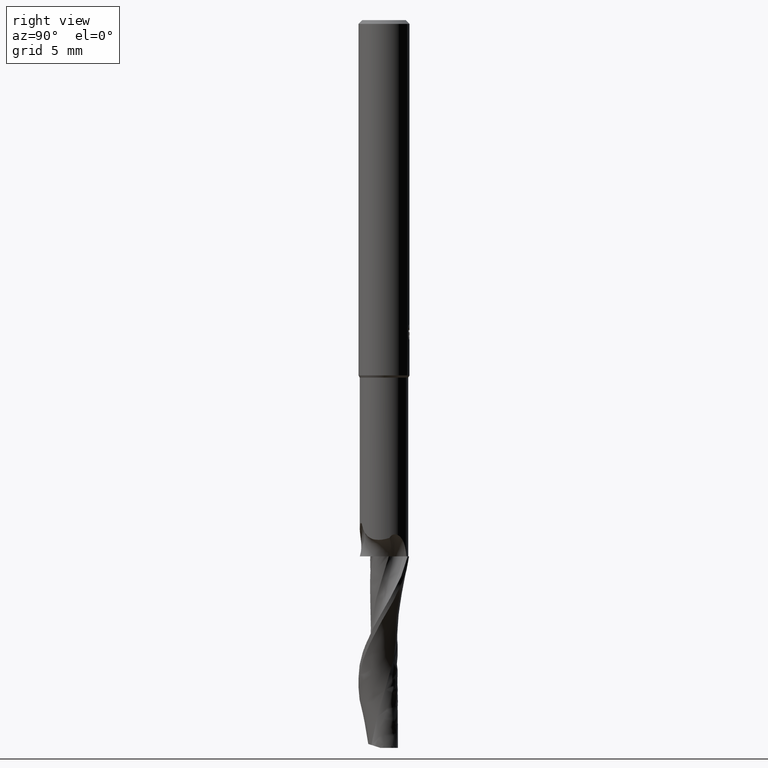
[diagram: clean part render]
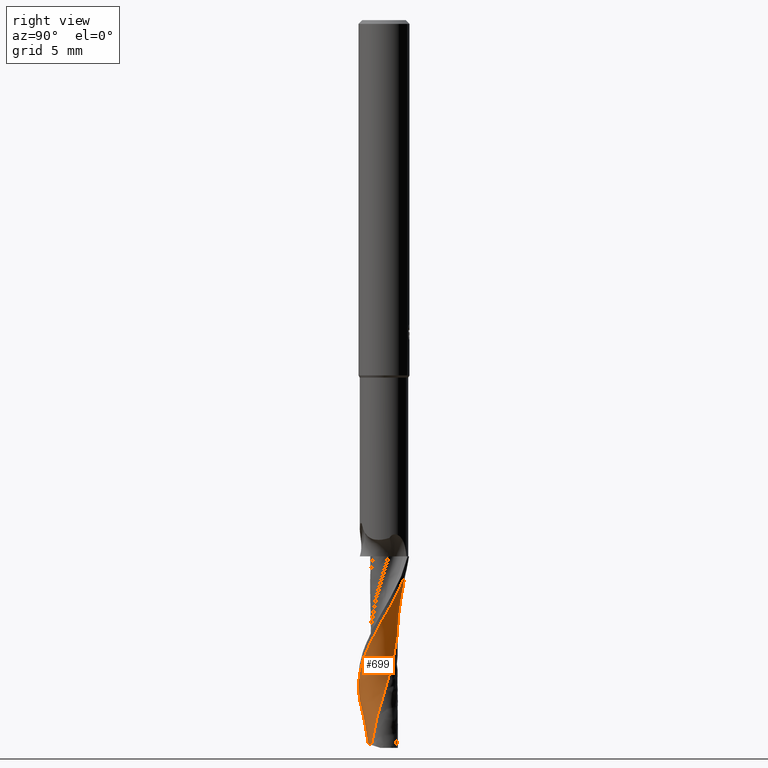
[diagram: same view with one face highlighted and labeled with its STEP entity id]
A machine part, right view. The second image highlights one B-rep face of the part: STEP entity #699.
In plain terms, the highlighted face is a freeform B-spline surface patch.
Its self-contained STEP definition (entity closure, byte-faithful):
#277=VERTEX_POINT('',#773);
#283=VERTEX_POINT('',#780);
#445=VERTEX_POINT('',#962);
#489=VERTEX_POINT('',#1007);
#589=EDGE_CURVE('',#283,#489,#1117,.T.);
#635=EDGE_CURVE('',#277,#283,#1166,.T.);
#649=EDGE_CURVE('',#489,#445,#1182,.T.);
#661=EDGE_CURVE('',#703,#445,#1197,.T.);
#671=EDGE_CURVE('',#703,#277,#1207,.T.);
#699=ADVANCED_FACE('',(#1235),#1236,.T.);
#703=VERTEX_POINT('',#1240);
#773=CARTESIAN_POINT('',(-1.95860379196093,-0.404808643365862,-56.9569360261492));
#780=CARTESIAN_POINT('',(2.08923074643851E-014,-1.99996813083805,-52.2196257072974));
#962=CARTESIAN_POINT('',(-1.06526862432302,0.0507138447766669,-42.0));
#1007=CARTESIAN_POINT('',(0.390368120532915,1.96143129894259,-42.0));
#1117=B_SPLINE_CURVE_WITH_KNOTS('',3,(#3291,#3292,#3293,#3294,#3295,#3296,#3297,#3298,#3299,#3300,#3301,#3302,#3303,#3304,#3305,#3306,#3307,#3308,#3309,#3310,#3311,#3312,#3313,#3314,#3315,#3316,#3317,#3318,#3319,#3320,#3321,#3322),.UNSPECIFIED.,.F.,.F.,(4,2,2,2,2,2,2,2,2,2,2,2,2,2,2,4),(0.0,1.17793156667396,2.40662367329956,3.50711822565191,7.77868306550345,8.74969548657624,10.5338851353546,11.9517486663174,12.9337812334165,13.9245081158108,15.5770174045067,16.2344615062287,17.4623358272344,18.060175245501,18.7527611448673,19.8394119704226),.UNSPECIFIED.);
#1166=B_SPLINE_CURVE_WITH_KNOTS('',3,(#3487,#3488,#3489,#3490,#3491,#3492,#3493,#3494,#3495,#3496,#3497,#3498,#3499,#3500,#3501,#3502,#3503,#3504,#3505,#3506,#3507,#3508,#3509,#3510,#3511,#3512,#3513,#3514,#3515,#3516,#3517,#3518),.UNSPECIFIED.,.F.,.F.,(4,2,2,2,2,2,2,2,2,2,2,2,2,2,2,4),(0.0,1.17793156667396,2.40662367329956,3.50711822565191,7.77868306550345,8.74969548657624,10.5338851353546,11.9517486663174,12.9337812334165,13.9245081158108,15.5770174045067,16.2344615062287,17.4623358272344,18.060175245501,18.7527611448673,19.8394119704226),.UNSPECIFIED.);
#1182=B_SPLINE_CURVE_WITH_KNOTS('',3,(#3540,#3541,#3542,#3543,#3544,#3545,#3546,#3547,#3548,#3549,#3550,#3551),.UNSPECIFIED.,.F.,.F.,(4,2,2,2,2,4),(0.0,0.694719835236679,1.38943233221595,2.08414310306714,2.47642715895697,2.86870989899778),.UNSPECIFIED.);
#1197=B_SPLINE_CURVE_WITH_KNOTS('',3,(#3583,#3584,#3585,#3586,#3587,#3588,#3589,#3590,#3591,#3592,#3593,#3594,#3595,#3596,#3597,#3598,#3599,#3600,#3601,#3602,#3603,#3604,#3605,#3606,#3607,#3608,#3609,#3610,#3611,#3612,#3613,#3614,#3615,#3616,#3617,#3618,#3619,#3620,#3621),.UNSPECIFIED.,.F.,.F.,(4,1,2,1,2,1,1,1,2,1,1,2,1,1,2,1,1,1,2,1,1,2,1,1,2,1,1,1,4),(0.0,0.719943288048691,1.43988657609738,2.15982986414607,2.87977315219476,3.59971644024345,4.31965972829214,5.03960301634083,5.75954630438952,6.47948959243822,7.55940452451125,8.63931945658429,9.71923438865732,10.7991493207304,11.519092608779,12.2390358968277,12.9589791848764,13.6789224729251,14.3988657609738,15.1188090490225,16.1987239810955,17.2786389131686,18.3585538452416,19.4384687773146,20.1584120653633,20.878355353412,21.5982986414607,22.3182419295094,23.0381852175581),.UNSPECIFIED.);
#1207=B_SPLINE_CURVE_WITH_KNOTS('',3,(#3642,#3643,#3644,#3645,#3646,#3647,#3648,#3649,#3650,#3651,#3652,#3653),.UNSPECIFIED.,.F.,.F.,(4,2,2,2,2,4),(0.0,0.698660160535304,1.3420299014617,1.98621786227805,2.45356189847831,2.94806132221157),.UNSPECIFIED.);
#1235=FACE_OUTER_BOUND('',#3716,.T.);
#1236=B_SPLINE_SURFACE_WITH_KNOTS('',3,3,((#3717,#3718,#3719,#3720,#3721,#3722,#3723,#3724,#3725,#3726,#3727,#3728,#3729,#3730,#3731,#3732,#3733,#3734,#3735,#3736,#3737,#3738,#3739,#3740,#3741,#3742,#3743,#3744,#3745,#3746,#3747,#3748,#3749,#3750,#3751,#3752,#3753,#3754,#3755),(#3756,#3757,#3758,#3759,#3760,#3761,#3762,#3763,#3764,#3765,#3766,#3767,#3768,#3769,#3770,#3771,#3772,#3773,#3774,#3775,#3776,#3777,#3778,#3779,#3780,#3781,#3782,#3783,#3784,#3785,#3786,#3787,#3788,#3789,#3790,#3791,#3792,#3793,#3794),(#3795,#3796,#3797,#3798,#3799,#3800,#3801,#3802,#3803,#3804,#3805,#3806,#3807,#3808,#3809,#3810,#3811,#3812,#3813,#3814,#3815,#3816,#3817,#3818,#3819,#3820,#3821,#3822,#3823,#3824,#3825,#3826,#3827,#3828,#3829,#3830,#3831,#3832,#3833),(#3834,#3835,#3836,#3837,#3838,#3839,#3840,#3841,#3842,#3843,#3844,#3845,#3846,#3847,#3848,#3849,#3850,#3851,#3852,#3853,#3854,#3855,#3856,#3857,#3858,#3859,#3860,#3861,#3862,#3863,#3864,#3865,#3866,#3867,#3868,#3869,#3870,#3871,#3872),(#3873,#3874,#3875,#3876,#3877,#3878,#3879,#3880,#3881,#3882,#3883,#3884,#3885,#3886,#3887,#3888,#3889,#3890,#3891,#3892,#3893,#3894,#3895,#3896,#3897,#3898,#3899,#3900,#3901,#3902,#3903,#3904,#3905,#3906,#3907,#3908,#3909,#3910,#3911),(#3912,#3913,#3914,#3915,#3916,#3917,#3918,#3919,#3920,#3921,#3922,#3923,#3924,#3925,#3926,#3927,#3928,#3929,#3930,#3931,#3932,#3933,#3934,#3935,#3936,#3937,#3938,#3939,#3940,#3941,#3942,#3943,#3944,#3945,#3946,#3947,#3948,#3949,#3950),(#3951,#3952,#3953,#3954,#3955,#3956,#3957,#3958,#3959,#3960,#3961,#3962,#3963,#3964,#3965,#3966,#3967,#3968,#3969,#3970,#3971,#3972,#3973,#3974,#3975,#3976,#3977,#3978,#3979,#3980,#3981,#3982,#3983,#3984,#3985,#3986,#3987,#3988,#3989)),.UNSPECIFIED.,.F.,.F.,.F.,(4,1,1,1,4),(4,1,2,1,2,1,1,1,2,1,1,2,1,1,2,1,1,1,2,1,1,2,1,1,2,1,1,1,4),(-1.60894697096009,-1.20671022822007,-0.804473485480046,-0.402236742740023,7.02071471736636E-016),(0.0,0.719943288048691,1.43988657609738,2.15982986414607,2.87977315219476,3.59971644024345,4.31965972829214,5.03960301634083,5.75954630438952,6.47948959243822,7.55940452451125,8.63931945658429,9.71923438865732,10.7991493207304,11.519092608779,12.2390358968277,12.9589791848764,13.6789224729251,14.3988657609738,15.1188090490225,16.1987239810955,17.2786389131686,18.3585538452416,19.4384687773146,20.1584120653633,20.878355353412,21.5982986414607,22.3182419295094,23.0381852175581),.UNSPECIFIED.);
#1240=CARTESIAN_POINT('',(0.419232439623331,-0.981047397900082,-56.7697047050683));
#3291=CARTESIAN_POINT('',(-1.96328303999171,-0.381470450862078,-57.0));
#3292=CARTESIAN_POINT('',(-1.92704270231658,-0.567973648174512,-56.6563833638706));
#3293=CARTESIAN_POINT('',(-1.86382897871028,-0.751309479628432,-56.3064245858749));
#3294=CARTESIAN_POINT('',(-1.67880934341517,-1.10602025664699,-55.6090934745505));
#3295=CARTESIAN_POINT('',(-1.57775220575786,-1.23331592117705,-55.3483549698159));
#3296=CARTESIAN_POINT('',(-1.45099880331821,-1.37945803321539,-55.0336554974317));
#3297=CARTESIAN_POINT('',(-1.38766095403773,-1.44294171666506,-54.883840767047));
#3298=CARTESIAN_POINT('',(-1.06532500919681,-1.72673673947409,-54.1480850051789));
#3299=CARTESIAN_POINT('',(-0.757798874445388,-1.88152425893738,-53.5206414285562));
#3300=CARTESIAN_POINT('',(-0.352112138311507,-1.97023376848447,-52.8034074049177));
#3301=CARTESIAN_POINT('',(-0.274884423094191,-1.98258538108556,-52.6711251925274));
#3302=CARTESIAN_POINT('',(-0.0503645331181015,-2.00466493244749,-52.2984670393891));
#3303=CARTESIAN_POINT('',(0.158945632580277,-2.00983626532763,-51.9659413446081));
#3304=CARTESIAN_POINT('',(0.606315177520394,-1.91655258412328,-51.1618650963478));
#3305=CARTESIAN_POINT('',(0.796233397213528,-1.84559016623285,-50.7961059346553));
#3306=CARTESIAN_POINT('',(1.09341653154166,-1.68036251733889,-50.1929990425679));
#3307=CARTESIAN_POINT('',(1.21065149044177,-1.59860688600114,-49.9460708623673));
#3308=CARTESIAN_POINT('',(1.43139706767604,-1.40452525302381,-49.4578106596688));
#3309=CARTESIAN_POINT('',(1.554980130864,-1.27549784538948,-49.1746012343892));
#3310=CARTESIAN_POINT('',(1.86594602543662,-0.802117448787922,-48.1877307367515));
#3311=CARTESIAN_POINT('',(1.98175863474316,-0.454814030327322,-47.5238775024649));
#3312=CARTESIAN_POINT('',(2.00442697924102,0.057287742900902,-46.6643489848101));
#3313=CARTESIAN_POINT('',(1.99563262414973,0.19787568995156,-46.4423919515521));
#3314=CARTESIAN_POINT('',(1.92250225825758,0.616744241188146,-45.719355096347));
#3315=CARTESIAN_POINT('',(1.8197260545477,0.87117047020599,-45.2256986570917));
#3316=CARTESIAN_POINT('',(1.60358017339008,1.20205967451739,-44.5224987250621));
#3317=CARTESIAN_POINT('',(1.52094217865489,1.30563370895892,-44.2919088378178));
#3318=CARTESIAN_POINT('',(1.31632815741288,1.51375888299308,-43.8013209583195));
#3319=CARTESIAN_POINT('',(1.19880013567537,1.60864100818994,-43.5642779431659));
#3320=CARTESIAN_POINT('',(0.85350025042655,1.82570797790167,-42.8691235468342));
#3321=CARTESIAN_POINT('',(0.624229807722033,1.91489056455931,-42.4270861703793));
#3322=CARTESIAN_POINT('',(0.390368120532913,1.96143129894259,-42.0));
#3487=CARTESIAN_POINT('',(-1.96328303999171,-0.381470450862078,-57.0));
#3488=CARTESIAN_POINT('',(-1.92704270231658,-0.567973648174512,-56.6563833638706));
#3489=CARTESIAN_POINT('',(-1.86382897871028,-0.751309479628432,-56.3064245858749));
#3490=CARTESIAN_POINT('',(-1.67880934341517,-1.10602025664699,-55.6090934745505));
#3491=CARTESIAN_POINT('',(-1.57775220575786,-1.23331592117705,-55.3483549698159));
#3492=CARTESIAN_POINT('',(-1.45099880331821,-1.37945803321539,-55.0336554974317));
#3493=CARTESIAN_POINT('',(-1.38766095403773,-1.44294171666506,-54.883840767047));
#3494=CARTESIAN_POINT('',(-1.06532500919681,-1.72673673947409,-54.1480850051789));
#3495=CARTESIAN_POINT('',(-0.757798874445388,-1.88152425893738,-53.5206414285562));
#3496=CARTESIAN_POINT('',(-0.352112138311507,-1.97023376848447,-52.8034074049177));
#3497=CARTESIAN_POINT('',(-0.274884423094191,-1.98258538108556,-52.6711251925274));
#3498=CARTESIAN_POINT('',(-0.0503645331181015,-2.00466493244749,-52.2984670393891));
#3499=CARTESIAN_POINT('',(0.158945632580277,-2.00983626532763,-51.9659413446081));
#3500=CARTESIAN_POINT('',(0.606315177520394,-1.91655258412328,-51.1618650963478));
#3501=CARTESIAN_POINT('',(0.796233397213528,-1.84559016623285,-50.7961059346553));
#3502=CARTESIAN_POINT('',(1.09341653154166,-1.68036251733889,-50.1929990425679));
#3503=CARTESIAN_POINT('',(1.21065149044177,-1.59860688600114,-49.9460708623673));
#3504=CARTESIAN_POINT('',(1.43139706767604,-1.40452525302381,-49.4578106596688));
#3505=CARTESIAN_POINT('',(1.554980130864,-1.27549784538948,-49.1746012343892));
#3506=CARTESIAN_POINT('',(1.86594602543662,-0.802117448787922,-48.1877307367515));
#3507=CARTESIAN_POINT('',(1.98175863474316,-0.454814030327322,-47.5238775024649));
#3508=CARTESIAN_POINT('',(2.00442697924102,0.057287742900902,-46.6643489848101));
#3509=CARTESIAN_POINT('',(1.99563262414973,0.19787568995156,-46.4423919515521));
#3510=CARTESIAN_POINT('',(1.92250225825758,0.616744241188146,-45.719355096347));
#3511=CARTESIAN_POINT('',(1.8197260545477,0.87117047020599,-45.2256986570917));
#3512=CARTESIAN_POINT('',(1.60358017339008,1.20205967451739,-44.5224987250621));
#3513=CARTESIAN_POINT('',(1.52094217865489,1.30563370895892,-44.2919088378178));
#3514=CARTESIAN_POINT('',(1.31632815741288,1.51375888299308,-43.8013209583195));
#3515=CARTESIAN_POINT('',(1.19880013567537,1.60864100818994,-43.5642779431659));
#3516=CARTESIAN_POINT('',(0.85350025042655,1.82570797790167,-42.8691235468342));
#3517=CARTESIAN_POINT('',(0.624229807722033,1.91489056455931,-42.4270861703793));
#3518=CARTESIAN_POINT('',(0.390368120532913,1.96143129894259,-42.0));
#3540=CARTESIAN_POINT('',(0.613033298537831,1.98721478336767,-42.0));
#3541=CARTESIAN_POINT('',(0.38177567388653,1.97512783523241,-42.0));
#3542=CARTESIAN_POINT('',(0.155089901132811,1.91798687460441,-42.0));
#3543=CARTESIAN_POINT('',(-0.263616849927804,1.72002965150163,-42.0));
#3544=CARTESIAN_POINT('',(-0.451634956390322,1.58110692444645,-42.0));
#3545=CARTESIAN_POINT('',(-0.76383687906519,1.23901110749601,-42.0));
#3546=CARTESIAN_POINT('',(-0.88503587592455,1.03910897569203,-42.0));
#3547=CARTESIAN_POINT('',(-1.00938936020507,0.698785043858428,-42.0));
#3548=CARTESIAN_POINT('',(-1.04058457334002,0.571390153386056,-42.0));
#3549=CARTESIAN_POINT('',(-1.07447766500026,0.312073468052592,-42.0));
#3550=CARTESIAN_POINT('',(-1.07707248963659,0.18094089157019,-42.0));
#3551=CARTESIAN_POINT('',(-1.06526862432302,0.0507138447766599,-42.0));
#3583=CARTESIAN_POINT('',(-0.7454103627123,-0.778736371108074,-61.0));
#3584=CARTESIAN_POINT('',(-0.71085816802661,-0.803201734372931,-60.7603137171853));
#3585=CARTESIAN_POINT('',(-0.628700295074678,-0.863262752723454,-60.2814547144464));
#3586=CARTESIAN_POINT('',(-0.505331455079665,-0.938212019353723,-59.8026766142414));
#3587=CARTESIAN_POINT('',(-0.355674214222451,-1.0083809094642,-59.3231970892319));
#3588=CARTESIAN_POINT('',(-0.204971542050152,-1.05637683094339,-58.8436634261087));
#3589=CARTESIAN_POINT('',(-0.0549148999241464,-1.06948069746193,-58.3644418018063));
#3590=CARTESIAN_POINT('',(0.0964052008001218,-1.06711319266951,-57.8854105928121));
#3591=CARTESIAN_POINT('',(0.242446835293972,-1.04796660358779,-57.4062613204771));
#3592=CARTESIAN_POINT('',(0.444067406430681,-0.977494979163422,-56.6875933215937));
#3593=CARTESIAN_POINT('',(0.630141428757512,-0.868368663076686,-55.9690798867515));
#3594=CARTESIAN_POINT('',(0.743621512764961,-0.768064141781557,-55.4900300276519));
#3595=CARTESIAN_POINT('',(0.8492753356405,-0.652386314567438,-55.0107816727479));
#3596=CARTESIAN_POINT('',(0.958689402422757,-0.498441780257405,-54.411547930503));
#3597=CARTESIAN_POINT('',(1.05698802071046,-0.230578150210571,-53.4530320832033));
#3598=CARTESIAN_POINT('',(1.07215820322127,-0.00881181114975998,-52.7345939707004));
#3599=CARTESIAN_POINT('',(1.05100280223269,0.224881050635019,-52.0158732580651));
#3600=CARTESIAN_POINT('',(0.99082959013382,0.440065880882917,-51.2968409758389));
#3601=CARTESIAN_POINT('',(0.835572995281969,0.680260420725513,-50.3386206750373));
#3602=CARTESIAN_POINT('',(0.698480488114232,0.80950541298253,-49.7398453471523));
#3603=CARTESIAN_POINT('',(0.574148592949162,0.903961859847254,-49.2606776152161));
#3604=CARTESIAN_POINT('',(0.443876205200215,0.98012818618651,-48.781365671711));
#3605=CARTESIAN_POINT('',(0.23887678508421,1.04725462835437,-48.0624863020905));
#3606=CARTESIAN_POINT('',(0.0247831182830096,1.07288632712679,-47.3438669417283));
#3607=CARTESIAN_POINT('',(-0.125563849044472,1.06173161918185,-46.8648452390534));
#3608=CARTESIAN_POINT('',(-0.279251872790312,1.03378473771175,-46.3856780231948));
#3609=CARTESIAN_POINT('',(-0.459494187530073,0.977830006452018,-45.7865339388309));
#3610=CARTESIAN_POINT('',(-0.700853309528335,0.824305786759621,-44.8280863783556));
#3611=CARTESIAN_POINT('',(-0.847619220641641,0.656834905648069,-44.1096276480346));
#3612=CARTESIAN_POINT('',(-0.972330442181389,0.458244272498831,-43.390864299266));
#3613=CARTESIAN_POINT('',(-1.0546347037374,0.250997294593875,-42.6718089914035));
#3614=CARTESIAN_POINT('',(-1.07681658169638,-0.0335703797830561,-41.7136203773672));
#3615=CARTESIAN_POINT('',(-1.0463414525871,-0.219555574284388,-41.1148902900019));
#3616=CARTESIAN_POINT('',(-1.00482501522712,-0.370348683314551,-40.6357627140873));
#3617=CARTESIAN_POINT('',(-0.947411227082843,-0.510319849909731,-40.1564651761677));
#3618=CARTESIAN_POINT('',(-0.825016099186018,-0.688137612384367,-39.4375351726648));
#3619=CARTESIAN_POINT('',(-0.670793043363721,-0.837572724211429,-38.7188132644534));
#3620=CARTESIAN_POINT('',(-0.545758316794139,-0.918831567889592,-38.2397118657081));
#3621=CARTESIAN_POINT('',(-0.477194076001956,-0.95382259267474,-38.0000946378718));
#3642=CARTESIAN_POINT('',(0.419232439623318,-0.98104739790008,-56.7697047050683));
#3643=CARTESIAN_POINT('',(0.223313847985327,-1.10079039844899,-56.730797845704));
#3644=CARTESIAN_POINT('',(0.00593482499962181,-1.1846215066269,-56.703559467501));
#3645=CARTESIAN_POINT('',(-0.433791825993267,-1.25932982075834,-56.6792852647673));
#3646=CARTESIAN_POINT('',(-0.648767445314905,-1.25600896943967,-56.6803642747686));
#3647=CARTESIAN_POINT('',(-1.06685763705627,-1.16766971125126,-56.7090674397046));
#3648=CARTESIAN_POINT('',(-1.26336828368821,-1.0839247597245,-56.7362778239147));
#3649=CARTESIAN_POINT('',(-1.5651749628519,-0.880578759976272,-56.8023489443831));
#3650=CARTESIAN_POINT('',(-1.67859183172244,-0.778567217536714,-56.8354945037652));
#3651=CARTESIAN_POINT('',(-1.88017664695241,-0.541980992910115,-56.9123660280038));
#3652=CARTESIAN_POINT('',(-1.96543803667069,-0.407122622645985,-56.9561841687045));
#3653=CARTESIAN_POINT('',(-2.03138040429488,-0.263586818232288,-57.0028217786731));
#3716=EDGE_LOOP('',(#4587,#4588,#4589,#4590,#4591));
#3717=CARTESIAN_POINT('',(-1.11269636642005,1.75735790201206,-61.0));
#3718=CARTESIAN_POINT('',(-1.17360994315374,1.71906608887404,-60.7604138147185));
#3719=CARTESIAN_POINT('',(-1.32579043694816,1.615267277314,-60.281263267196));
#3720=CARTESIAN_POINT('',(-1.52818413776429,1.41981796709087,-59.8021137241179));
#3721=CARTESIAN_POINT('',(-1.73132515497592,1.16281336016039,-59.3229297514879));
#3722=CARTESIAN_POINT('',(-1.89315840053242,0.897427364211625,-58.843744134267));
#3723=CARTESIAN_POINT('',(-1.99021381857936,0.620015949072291,-58.3645752192265));
#3724=CARTESIAN_POINT('',(-2.05815456222269,0.332038510380576,-57.8854157479225));
#3725=CARTESIAN_POINT('',(-2.09314118625033,0.0477429739253599,-57.4062500957823));
#3726=CARTESIAN_POINT('',(-2.06140252369157,-0.364371826210496,-56.6875040377251));
#3727=CARTESIAN_POINT('',(-1.94848298451368,-0.767396783362164,-55.9687655877359));
#3728=CARTESIAN_POINT('',(-1.8124022053679,-1.03083205301635,-55.4896045294417));
#3729=CARTESIAN_POINT('',(-1.64067049671303,-1.28677133324026,-55.0104334708928));
#3730=CARTESIAN_POINT('',(-1.40134837783433,-1.56748490508836,-54.4114609370934));
#3731=CARTESIAN_POINT('',(-0.949978602522903,-1.88436709528549,-53.4531181420161));
#3732=CARTESIAN_POINT('',(-0.538967589801666,-2.02148005756443,-52.734383827821));
#3733=CARTESIAN_POINT('',(-0.0828132812627806,-2.09049721105446,-52.0156351682115));
#3734=CARTESIAN_POINT('',(0.351713435065831,-2.08104648245458,-51.2968706959222));
#3735=CARTESIAN_POINT('',(0.87819214384458,-1.9103184137788,-50.3385428076656));
#3736=CARTESIAN_POINT('',(1.18912009804281,-1.7126602798663,-49.7395935628261));
#3737=CARTESIAN_POINT('',(1.42770185071443,-1.51956127338499,-49.2604266996561));
#3738=CARTESIAN_POINT('',(1.63421789550273,-1.309366162143,-48.7812525342178));
#3739=CARTESIAN_POINT('',(1.86115533653207,-0.95828357782663,-48.0624957798225));
#3740=CARTESIAN_POINT('',(2.0150592081179,-0.569534970206036,-47.3437522063109));
#3741=CARTESIAN_POINT('',(2.066224753692,-0.279216225792574,-46.8645927641809));
#3742=CARTESIAN_POINT('',(2.08486284135984,0.0273004973407442,-46.385425956983));
#3743=CARTESIAN_POINT('',(2.06509635762486,0.395291223525236,-45.7864580808778));
#3744=CARTESIAN_POINT('',(1.89808681832201,0.922661620257895,-44.8281187376126));
#3745=CARTESIAN_POINT('',(1.65362891611403,1.28150670129838,-44.1093832658363));
#3746=CARTESIAN_POINT('',(1.33283760598414,1.6126328786026,-43.3906323123961));
#3747=CARTESIAN_POINT('',(0.982322046042539,1.86785646649367,-42.6718665184984));
#3748=CARTESIAN_POINT('',(0.461479321701661,2.05121775343517,-41.7135401751643));
#3749=CARTESIAN_POINT('',(0.0942352310661212,2.0828909765262,-41.1145933666139));
#3750=CARTESIAN_POINT('',(-0.213211794522379,2.07413371606441,-40.6354287342046));
#3751=CARTESIAN_POINT('',(-0.505822814815417,2.03214681117737,-40.1562555761485));
#3752=CARTESIAN_POINT('',(-0.899514309647558,1.89027103474027,-39.43749721108));
#3753=CARTESIAN_POINT('',(-1.25583979023941,1.67540567037863,-38.7187502293443));
#3754=CARTESIAN_POINT('',(-1.47000166071809,1.47840648536277,-38.2395886923064));
#3755=CARTESIAN_POINT('',(-1.56903119018916,1.36448818862351,-38.0000047934925));
#3756=CARTESIAN_POINT('',(-1.25900457786308,1.56907520487254,-61.0));
#3757=CARTESIAN_POINT('',(-1.31283060817532,1.52527598372577,-60.7603910384016));
#3758=CARTESIAN_POINT('',(-1.44695657980236,1.40859053006277,-60.2813068292638));
#3759=CARTESIAN_POINT('',(-1.62025003804292,1.19907956102858,-59.8022418049896));
#3760=CARTESIAN_POINT('',(-1.78809924675558,0.930481696380071,-59.3229905816962));
#3761=CARTESIAN_POINT('',(-1.91519066836081,0.658173251086853,-58.8437257697312));
#3762=CARTESIAN_POINT('',(-1.97858107594335,0.381252880743832,-58.3645448616188));
#3763=CARTESIAN_POINT('',(-2.01290867446444,0.0973137884527472,-57.8854145745649));
#3764=CARTESIAN_POINT('',(-2.01587142645635,-0.179535234801518,-57.4062526490503));
#3765=CARTESIAN_POINT('',(-1.94081903555108,-0.571895631135941,-56.6875243532937));
#3766=CARTESIAN_POINT('',(-1.78884594543374,-0.946774033645864,-55.9688371049581));
#3767=CARTESIAN_POINT('',(-1.6298399180199,-1.18522109317673,-55.4897013473482));
#3768=CARTESIAN_POINT('',(-1.43746058452369,-1.41274927790886,-55.0105127016591));
#3769=CARTESIAN_POINT('',(-1.17738394176493,-1.65670461300107,-54.4114807333679));
#3770=CARTESIAN_POINT('',(-0.70959967808159,-1.91218296541721,-53.4530985607402));
#3771=CARTESIAN_POINT('',(-0.300075467064146,-1.99960076968319,-52.7344316427623));
#3772=CARTESIAN_POINT('',(0.145569256159562,-2.01708616006973,-52.015689344702));
#3773=CARTESIAN_POINT('',(0.561963251871013,-1.961196016836,-51.2968639348012));
#3774=CARTESIAN_POINT('',(1.04910445151478,-1.74028411746246,-50.3385605231539));
#3775=CARTESIAN_POINT('',(1.32653423484974,-1.51700727675826,-49.739650858188));
#3776=CARTESIAN_POINT('',(1.5350835344049,-1.30594558688397,-49.2604837892535));
#3777=CARTESIAN_POINT('',(1.71088090185334,-1.08182269398697,-48.7812782799848));
#3778=CARTESIAN_POINT('',(1.89090890611431,-0.720109172651037,-48.0624936274717));
#3779=CARTESIAN_POINT('',(1.9967228799436,-0.330124343021075,-47.3437783105772));
#3780=CARTESIAN_POINT('',(2.01467462047581,-0.0457518847938034,-46.8646502175763));
#3781=CARTESIAN_POINT('',(1.99977084463655,0.250733061844301,-46.3854833074962));
#3782=CARTESIAN_POINT('',(1.94122870176881,0.60212310952099,-45.7864753454349));
#3783=CARTESIAN_POINT('',(1.72377656626001,1.09053759448432,-44.8281113761011));
#3784=CARTESIAN_POINT('',(1.45034076532556,1.40886913361706,-44.1094388686977));
#3785=CARTESIAN_POINT('',(1.10669283779708,1.69266674196702,-43.3906851031441));
#3786=CARTESIAN_POINT('',(0.742483406131931,1.90006594360248,-42.6718534262707));
#3787=CARTESIAN_POINT('',(0.222452462739078,2.01980212445483,-41.7135584276301));
#3788=CARTESIAN_POINT('',(-0.13371669079087,2.01076765173007,-41.1146609267003));
#3789=CARTESIAN_POINT('',(-0.428165676295271,1.96945122756715,-40.6355047306313));
#3790=CARTESIAN_POINT('',(-0.704757125617464,1.89767678161081,-40.1563032616543));
#3791=CARTESIAN_POINT('',(-1.06755352828176,1.7188850612849,-39.4375058442556));
#3792=CARTESIAN_POINT('',(-1.3865456918919,1.47401684491872,-38.7187645808154));
#3793=CARTESIAN_POINT('',(-1.57105946599356,1.26174824741756,-38.2396167145978));
#3794=CARTESIAN_POINT('',(-1.65398271556644,1.14168849226825,-38.0000252367953));
#3795=CARTESIAN_POINT('',(-1.47481182759649,1.13296441554803,-61.0));
#3796=CARTESIAN_POINT('',(-1.51222133197086,1.08104172091272,-60.7603491634982));
#3797=CARTESIAN_POINT('',(-1.6049942556753,0.945947714991109,-60.2813869197625));
#3798=CARTESIAN_POINT('',(-1.71436944061761,0.720180764035584,-59.8024772844953));
#3799=CARTESIAN_POINT('',(-1.80692622177761,0.442786186763279,-59.3231024205619));
#3800=CARTESIAN_POINT('',(-1.86172867338505,0.170796294515453,-58.8436920063227));
#3801=CARTESIAN_POINT('',(-1.85800485590787,-0.0914208746224268,-58.3644890468666));
#3802=CARTESIAN_POINT('',(-1.8267677716348,-0.35358495554957,-57.8854124187433));
#3803=CARTESIAN_POINT('',(-1.76873275129646,-0.602491975503504,-57.4062573466071));
#3804=CARTESIAN_POINT('',(-1.61512464193277,-0.937698747428604,-56.6875617042775));
#3805=CARTESIAN_POINT('',(-1.39653471876086,-1.2403795118278,-55.96896858673));
#3806=CARTESIAN_POINT('',(-1.20187365481885,-1.41951779000085,-55.4898793511178));
#3807=CARTESIAN_POINT('',(-0.979788607743191,-1.5818213472666,-55.0106583683641));
#3808=CARTESIAN_POINT('',(-0.6931946668297,-1.74381808378724,-54.4115171229647));
#3809=CARTESIAN_POINT('',(-0.217616313262379,-1.86982702498939,-53.4530625607631));
#3810=CARTESIAN_POINT('',(0.168680010020682,-1.85848362498918,-52.7345195501542));
#3811=CARTESIAN_POINT('',(0.572306890852743,-1.77721300303949,-52.0157889514478));
#3812=CARTESIAN_POINT('',(0.933515893948175,-1.63585624914918,-51.2968514990496));
#3813=CARTESIAN_POINT('',(1.32154621760991,-1.33063339088323,-50.3385931013455));
#3814=CARTESIAN_POINT('',(1.52155344826068,-1.06978438813276,-49.7397561864881));
#3815=CARTESIAN_POINT('',(1.66273049774433,-0.835046450631812,-49.2605887609318));
#3816=CARTESIAN_POINT('',(1.7714280500842,-0.595594936740013,-48.781325608661));
#3817=CARTESIAN_POINT('',(1.85332598648437,-0.231744044312328,-48.0624896557511));
#3818=CARTESIAN_POINT('',(1.86247867577153,0.141111955640409,-47.3438263129546));
#3819=CARTESIAN_POINT('',(1.816441863708,0.400057167647343,-46.8647558298184));
#3820=CARTESIAN_POINT('',(1.73855876235352,0.662812087026069,-46.38558876548));
#3821=CARTESIAN_POINT('',(1.60924951766932,0.965204131689451,-45.7865070734807));
#3822=CARTESIAN_POINT('',(1.30681348100586,1.35516529200673,-44.8280978329883));
#3823=CARTESIAN_POINT('',(0.99194806432368,1.58067764861804,-44.1095411132319));
#3824=CARTESIAN_POINT('',(0.621887904027868,1.76052412035775,-43.3907821433338));
#3825=CARTESIAN_POINT('',(0.249789599021066,1.8667153882685,-42.6718293647302));
#3826=CARTESIAN_POINT('',(-0.242685554702365,1.85956182379094,-41.7135919777193));
#3827=CARTESIAN_POINT('',(-0.56011815275736,1.77364485581456,-41.1147851441368));
#3828=CARTESIAN_POINT('',(-0.815306498983948,1.67252305229488,-40.6356444459121));
#3829=CARTESIAN_POINT('',(-1.04772530484824,1.5477167054038,-40.1563909580721));
#3830=CARTESIAN_POINT('',(-1.33369953233,1.30770264298456,-39.4375217341605));
#3831=CARTESIAN_POINT('',(-1.56581372684002,1.01805915928843,-38.718790934311));
#3832=CARTESIAN_POINT('',(-1.68482151542667,0.787342940954827,-38.2396682544032));
#3833=CARTESIAN_POINT('',(-1.7330365350362,0.661567797216549,-38.0000628223818));
#3834=CARTESIAN_POINT('',(-1.51661255720711,0.404223113204919,-61.0));
#3835=CARTESIAN_POINT('',(-1.52659012999962,0.350727131870344,-60.7603073751122));
#3836=CARTESIAN_POINT('',(-1.55146876475719,0.214505957872815,-60.2814668441165));
#3837=CARTESIAN_POINT('',(-1.56306448350086,0.00383437749994819,-59.8027122784721));
#3838=CARTESIAN_POINT('',(-1.54652122750619,-0.24148855418145,-59.3232140270251));
#3839=CARTESIAN_POINT('',(-1.50172247559329,-0.470587788134486,-58.8436583123877));
#3840=CARTESIAN_POINT('',(-1.41398793888926,-0.673096448922418,-58.3644333493485));
#3841=CARTESIAN_POINT('',(-1.30503197528088,-0.866699973197171,-57.885410265517));
#3842=CARTESIAN_POINT('',(-1.1792037839965,-1.041215354447,-57.4062620308752));
#3843=CARTESIAN_POINT('',(-0.950719574938686,-1.25139580794776,-56.6875989782663));
#3844=CARTESIAN_POINT('',(-0.682568503966936,-1.41529436008405,-55.9690998015229));
#3845=CARTESIAN_POINT('',(-0.473517369163184,-1.49162428872907,-55.4900569863453));
#3846=CARTESIAN_POINT('',(-0.248728777169445,-1.54644688236933,-55.01080373456));
#3847=CARTESIAN_POINT('',(0.0263405323808023,-1.57973531653905,-54.4115534425002));
#3848=CARTESIAN_POINT('',(0.436648404729483,-1.52244665569011,-53.4530266292471));
#3849=CARTESIAN_POINT('',(0.732884324574206,-1.38841281115237,-52.7346072861708));
#3850=CARTESIAN_POINT('',(1.02051604668404,-1.19549311672827,-52.0158883419652));
#3851=CARTESIAN_POINT('',(1.25535789276321,-0.96856436514086,-51.2968390951205));
#3852=CARTESIAN_POINT('',(1.4570640734785,-0.605159770445221,-50.3386256095752));
#3853=CARTESIAN_POINT('',(1.52813274622134,-0.337911392691497,-49.739861298302));
#3854=CARTESIAN_POINT('',(1.56240497876396,-0.110054198717619,-49.2606935143967));
#3855=CARTESIAN_POINT('',(1.56947584208331,0.111153422143651,-48.7813728369957));
#3856=CARTESIAN_POINT('',(1.51465910430201,0.420328938159718,-48.0624857045002));
#3857=CARTESIAN_POINT('',(1.40043849343602,0.712776870828741,-47.3438742128901));
#3858=CARTESIAN_POINT('',(1.28100323764688,0.89904553683595,-46.8648612364459));
#3859=CARTESIAN_POINT('',(1.13599055931634,1.0782553224474,-46.3856939927877));
#3860=CARTESIAN_POINT('',(0.937767395957663,1.27145291579276,-45.7865387438022));
#3861=CARTESIAN_POINT('',(0.575834549438888,1.47560244309234,-44.8280843257638));
#3862=CARTESIAN_POINT('',(0.258286392691014,1.54865735413752,-44.1096431320224));
#3863=CARTESIAN_POINT('',(-0.0871892266705927,1.56949855487037,-43.3908789973269));
#3864=CARTESIAN_POINT('',(-0.410744137014454,1.53134891776853,-42.6718053405401));
#3865=CARTESIAN_POINT('',(-0.790666427389229,1.36521757128836,-41.713625459389));
#3866=CARTESIAN_POINT('',(-1.00947837597732,1.19591900156548,-41.1149091018087));
#3867=CARTESIAN_POINT('',(-1.17535095421804,1.03529674943126,-40.6357838753901));
#3868=CARTESIAN_POINT('',(-1.31565107882991,0.863224660832819,-40.1564784547067));
#3869=CARTESIAN_POINT('',(-1.45962719506106,0.583811773457812,-39.4375375835867));
#3870=CARTESIAN_POINT('',(-1.54552055315062,0.283378296963274,-38.7188172606405));
#3871=CARTESIAN_POINT('',(-1.56327019306109,0.065664514422014,-38.2397196670386));
#3872=CARTESIAN_POINT('',(-1.5602173912546,-0.0476181649071311,-38.00010033028));
#3873=CARTESIAN_POINT('',(-1.26979816987408,-0.282729374907369,-61.0));
#3874=CARTESIAN_POINT('',(-1.25391695024526,-0.326934349738642,-60.7602932861663));
#3875=CARTESIAN_POINT('',(-1.21587790517968,-0.4376142434897,-60.2814937907392));
#3876=CARTESIAN_POINT('',(-1.14340619271804,-0.596117485157801,-59.8027915067341));
#3877=CARTESIAN_POINT('',(-1.03902396208266,-0.769218744149011,-59.3232516554004));
#3878=CARTESIAN_POINT('',(-0.919362396917179,-0.91985915823801,-58.843646953011));
#3879=CARTESIAN_POINT('',(-0.777695087126497,-1.03453639161741,-58.3644145695981));
#3880=CARTESIAN_POINT('',(-0.624061420504337,-1.13462587664034,-57.8854095408389));
#3881=CARTESIAN_POINT('',(-0.464971857219541,-1.21414705059385,-57.4062636100824));
#3882=CARTESIAN_POINT('',(-0.216530455785716,-1.27996644820657,-56.6876115460335));
#3883=CARTESIAN_POINT('',(0.0428979602842737,-1.29675577379406,-55.9691440400317));
#3884=CARTESIAN_POINT('',(0.224944613103569,-1.27284804813236,-55.4901168764663));
#3885=CARTESIAN_POINT('',(0.410145560665454,-1.22770814350459,-55.0108527446463));
#3886=CARTESIAN_POINT('',(0.624224582249413,-1.14707053461192,-54.4115656869022));
#3887=CARTESIAN_POINT('',(0.902715174037982,-0.946662513047286,-53.4530145156762));
#3888=CARTESIAN_POINT('',(1.06804790737599,-0.734984581723612,-52.734636866865));
#3889=CARTESIAN_POINT('',(1.20523358832772,-0.484733725872646,-52.0159218511436));
#3890=CARTESIAN_POINT('',(1.29029341513969,-0.228530304471289,-51.2968349082591));
#3891=CARTESIAN_POINT('',(1.29776751703543,0.115473121282868,-50.3386365708168));
#3892=CARTESIAN_POINT('',(1.24768159114901,0.338134800002733,-49.739896734976));
#3893=CARTESIAN_POINT('',(1.18627344792369,0.517810427020281,-49.2607288339793));
#3894=CARTESIAN_POINT('',(1.10696919752493,0.682446302281738,-48.7813887624989));
#3895=CARTESIAN_POINT('',(0.947751120317552,0.88778992917322,-48.0624843679593));
#3896=CARTESIAN_POINT('',(0.75147947066348,1.05794944529497,-47.3438903590384));
#3897=CARTESIAN_POINT('',(0.592953455413881,1.14860785384871,-46.8648967743737));
#3898=CARTESIAN_POINT('',(0.418873353714731,1.22466015322567,-46.3857294702716));
#3899=CARTESIAN_POINT('',(0.1999817288319,1.2903991925634,-45.7865494235548));
#3900=CARTESIAN_POINT('',(-0.143960710238133,1.30027344131534,-44.8280797793973));
#3901=CARTESIAN_POINT('',(-0.404295205383818,1.23198658735694,-44.1096775224385));
#3902=CARTESIAN_POINT('',(-0.664902496479808,1.11613498015877,-43.3909116570365));
#3903=CARTESIAN_POINT('',(-0.887282730020239,0.964165858078953,-42.6717972444602));
#3904=CARTESIAN_POINT('',(-1.10139887268803,0.695803862216173,-41.7136367478872));
#3905=CARTESIAN_POINT('',(-1.19681867477583,0.488384317261555,-41.1149508929709));
#3906=CARTESIAN_POINT('',(-1.25721018613023,0.30797399982302,-40.6358308854316));
#3907=CARTESIAN_POINT('',(-1.29423949214783,0.128469500733428,-40.1565079537813));
#3908=CARTESIAN_POINT('',(-1.29212532716894,-0.131610407705373,-39.4375429184866));
#3909=CARTESIAN_POINT('',(-1.23924211398477,-0.384731958326722,-38.7188261324309));
#3910=CARTESIAN_POINT('',(-1.16890390533409,-0.550841474768952,-38.2397370088937));
#3911=CARTESIAN_POINT('',(-1.12356478977193,-0.63255881845812,-38.000112976099));
#3912=CARTESIAN_POINT('',(-0.939122551997651,-0.639696612405119,-61.0));
#3913=CARTESIAN_POINT('',(-0.909804155500393,-0.671453900187263,-60.7603038600303));
#3914=CARTESIAN_POINT('',(-0.839836775203863,-0.750046606728518,-60.2814735674562));
#3915=CARTESIAN_POINT('',(-0.729412420801988,-0.854609939205914,-59.8027320449793));
#3916=CARTESIAN_POINT('',(-0.589997480613744,-0.960486143993561,-59.3232234157391));
#3917=CARTESIAN_POINT('',(-0.444890611373025,-1.04346209036438,-58.8436554777148));
#3918=CARTESIAN_POINT('',(-0.293062616511545,-1.09018791561866,-58.3644286644));
#3919=CARTESIAN_POINT('',(-0.136428398878433,-1.12125560145693,-57.8854100841956));
#3920=CARTESIAN_POINT('',(0.0182725947079372,-1.13382642929606,-57.4062624276298));
#3921=CARTESIAN_POINT('',(0.241280987873619,-1.1058856937756,-56.687602113464));
#3922=CARTESIAN_POINT('',(0.456966833936638,-1.03471392078403,-55.9691108358793));
#3923=CARTESIAN_POINT('',(0.596289139408416,-0.956367471623325,-55.4900719296099));
#3924=CARTESIAN_POINT('',(0.731118966510964,-0.860241524857453,-55.0108159614233));
#3925=CARTESIAN_POINT('',(0.878054213768226,-0.725638149522853,-54.4115564986365));
#3926=CARTESIAN_POINT('',(1.03833665224996,-0.471841234401543,-53.4530236065914));
#3927=CARTESIAN_POINT('',(1.10310945622506,-0.246698700255227,-52.7346146689481));
#3928=CARTESIAN_POINT('',(1.13304871833025,-0.000543515911341941,-52.0158966998381));
#3929=CARTESIAN_POINT('',(1.11859151545605,0.234527539395319,-51.2968380528545));
#3930=CARTESIAN_POINT('',(1.01198596786311,0.515940180338281,-50.3386283402006));
#3931=CARTESIAN_POINT('',(0.899219305991106,0.679633660156223,-49.7398701447333));
#3932=CARTESIAN_POINT('',(0.791694615769015,0.804784149229342,-49.2607023213463));
#3933=CARTESIAN_POINT('',(0.674171341219917,0.91217675808612,-48.7813768124345));
#3934=CARTESIAN_POINT('',(0.478010660563908,1.02658310023662,-48.0624853689252));
#3935=CARTESIAN_POINT('',(0.263322910891907,1.10031691224755,-47.3438782439092));
#3936=CARTESIAN_POINT('',(0.105770465052191,1.12212576005691,-46.8648700987114));
#3937=CARTESIAN_POINT('',(-0.0592180531432549,1.12731483951386,-46.3857028485588));
#3938=CARTESIAN_POINT('',(-0.257524123038567,1.10947619141462,-45.7865414080891));
#3939=CARTESIAN_POINT('',(-0.539729869661194,1.00487611318797,-44.8280831870802));
#3940=CARTESIAN_POINT('',(-0.728082348966924,0.86482096034391,-44.1096517207108));
#3941=CARTESIAN_POINT('',(-0.900957382753816,0.687269960342078,-43.3908871373558));
#3942=CARTESIAN_POINT('',(-1.03157235627347,0.491887624134923,-42.6718033349429));
#3943=CARTESIAN_POINT('',(-1.11730240176306,0.204088363408109,-41.7136282687025));
#3944=CARTESIAN_POINT('',(-1.12708419223227,0.00548767929447569,-41.1149195367278));
#3945=CARTESIAN_POINT('',(-1.11760888563947,-0.159532654038104,-40.6357955959842));
#3946=CARTESIAN_POINT('',(-1.08935167600046,-0.31664496922218,-40.1564858219351));
#3947=CARTESIAN_POINT('',(-1.00267047329015,-0.526739799370875,-39.4375389119901));
#3948=CARTESIAN_POINT('',(-0.877008338316003,-0.714622556777583,-38.7188194764682));
#3949=CARTESIAN_POINT('',(-0.766104116984844,-0.826088907325976,-38.2397239825652));
#3950=CARTESIAN_POINT('',(-0.703064182120702,-0.877408183945522,-38.0001034853613));
#3951=CARTESIAN_POINT('',(-0.7454103627123,-0.778736371108074,-61.0));
#3952=CARTESIAN_POINT('',(-0.71085816802661,-0.803201734372931,-60.7603137171853));
#3953=CARTESIAN_POINT('',(-0.628700295074678,-0.863262752723454,-60.2814547144464));
#3954=CARTESIAN_POINT('',(-0.505331455079665,-0.938212019353723,-59.8026766142414));
#3955=CARTESIAN_POINT('',(-0.355674214222451,-1.0083809094642,-59.3231970892319));
#3956=CARTESIAN_POINT('',(-0.204971542050152,-1.05637683094339,-58.8436634261087));
#3957=CARTESIAN_POINT('',(-0.0549148999241464,-1.06948069746193,-58.3644418018063));
#3958=CARTESIAN_POINT('',(0.0964052008001218,-1.06711319266951,-57.8854105928121));
#3959=CARTESIAN_POINT('',(0.242446835293972,-1.04796660358779,-57.4062613204771));
#3960=CARTESIAN_POINT('',(0.444067406430681,-0.977494979163422,-56.6875933215937));
#3961=CARTESIAN_POINT('',(0.630141428757512,-0.868368663076686,-55.9690798867515));
#3962=CARTESIAN_POINT('',(0.743621512764961,-0.768064141781557,-55.4900300276519));
#3963=CARTESIAN_POINT('',(0.8492753356405,-0.652386314567438,-55.0107816727479));
#3964=CARTESIAN_POINT('',(0.958689402422757,-0.498441780257405,-54.411547930503));
#3965=CARTESIAN_POINT('',(1.05698802071046,-0.230578150210571,-53.4530320832033));
#3966=CARTESIAN_POINT('',(1.07215820322127,-0.00881181114975998,-52.7345939707004));
#3967=CARTESIAN_POINT('',(1.05100280223269,0.224881050635019,-52.0158732580651));
#3968=CARTESIAN_POINT('',(0.99082959013382,0.440065880882917,-51.2968409758389));
#3969=CARTESIAN_POINT('',(0.835572995281969,0.680260420725513,-50.3386206750373));
#3970=CARTESIAN_POINT('',(0.698480488114232,0.80950541298253,-49.7398453471523));
#3971=CARTESIAN_POINT('',(0.574148592949162,0.903961859847254,-49.2606776152161));
#3972=CARTESIAN_POINT('',(0.443876205200215,0.98012818618651,-48.781365671711));
#3973=CARTESIAN_POINT('',(0.23887678508421,1.04725462835437,-48.0624863020905));
#3974=CARTESIAN_POINT('',(0.0247831182830096,1.07288632712679,-47.3438669417283));
#3975=CARTESIAN_POINT('',(-0.125563849044472,1.06173161918185,-46.8648452390534));
#3976=CARTESIAN_POINT('',(-0.279251872790312,1.03378473771175,-46.3856780231948));
#3977=CARTESIAN_POINT('',(-0.459494187530073,0.977830006452018,-45.7865339388309));
#3978=CARTESIAN_POINT('',(-0.700853309528335,0.824305786759621,-44.8280863783556));
#3979=CARTESIAN_POINT('',(-0.847619220641641,0.656834905648069,-44.1096276480346));
#3980=CARTESIAN_POINT('',(-0.972330442181389,0.458244272498831,-43.390864299266));
#3981=CARTESIAN_POINT('',(-1.0546347037374,0.250997294593875,-42.6718089914035));
#3982=CARTESIAN_POINT('',(-1.07681658169638,-0.0335703797830561,-41.7136203773672));
#3983=CARTESIAN_POINT('',(-1.0463414525871,-0.219555574284388,-41.1148902900019));
#3984=CARTESIAN_POINT('',(-1.00482501522712,-0.370348683314551,-40.6357627140873));
#3985=CARTESIAN_POINT('',(-0.947411227082843,-0.510319849909731,-40.1564651761677));
#3986=CARTESIAN_POINT('',(-0.825016099186018,-0.688137612384367,-39.4375351726648));
#3987=CARTESIAN_POINT('',(-0.670793043363721,-0.837572724211429,-38.7188132644534));
#3988=CARTESIAN_POINT('',(-0.545758316794139,-0.918831567889592,-38.2397118657081));
#3989=CARTESIAN_POINT('',(-0.477194076001956,-0.95382259267474,-38.0000946378718));
#4587=ORIENTED_EDGE('',*,*,#635,.F.);
#4588=ORIENTED_EDGE('',*,*,#671,.F.);
#4589=ORIENTED_EDGE('',*,*,#661,.T.);
#4590=ORIENTED_EDGE('',*,*,#649,.F.);
#4591=ORIENTED_EDGE('',*,*,#589,.F.);